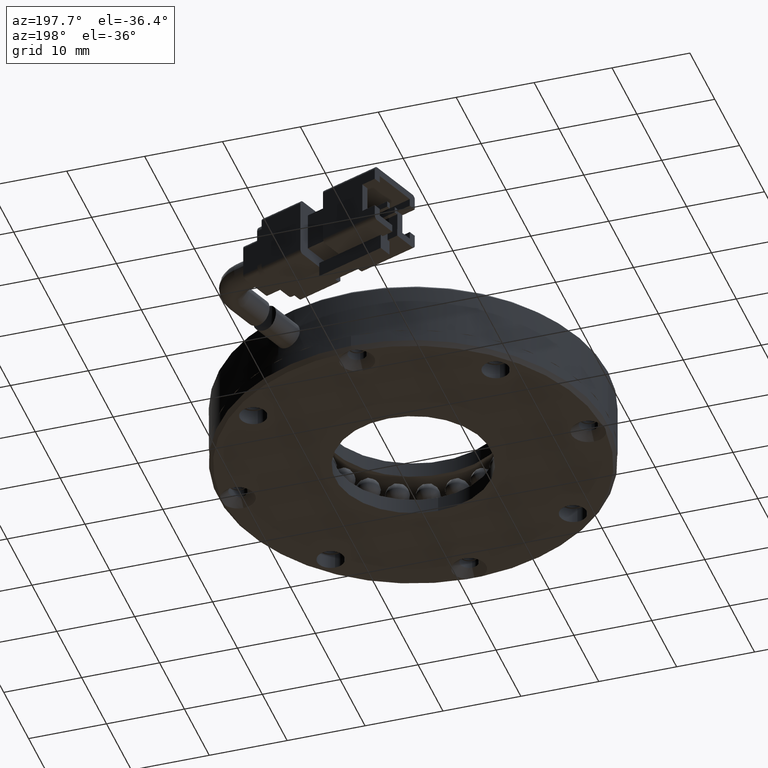
[diagram: clean part render]
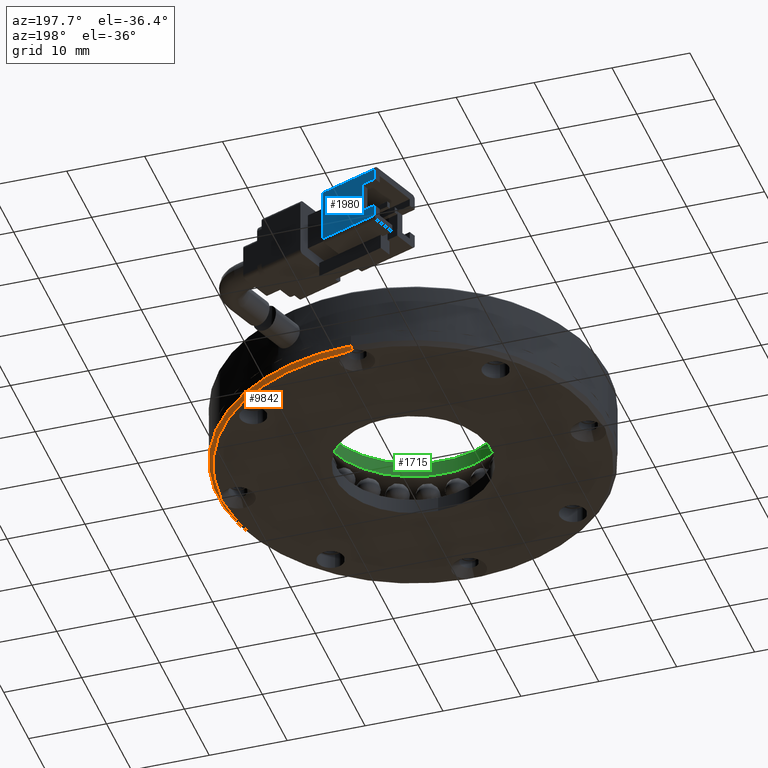
[diagram: same view with three faces highlighted in distinct colors, each labeled with its STEP entity id]
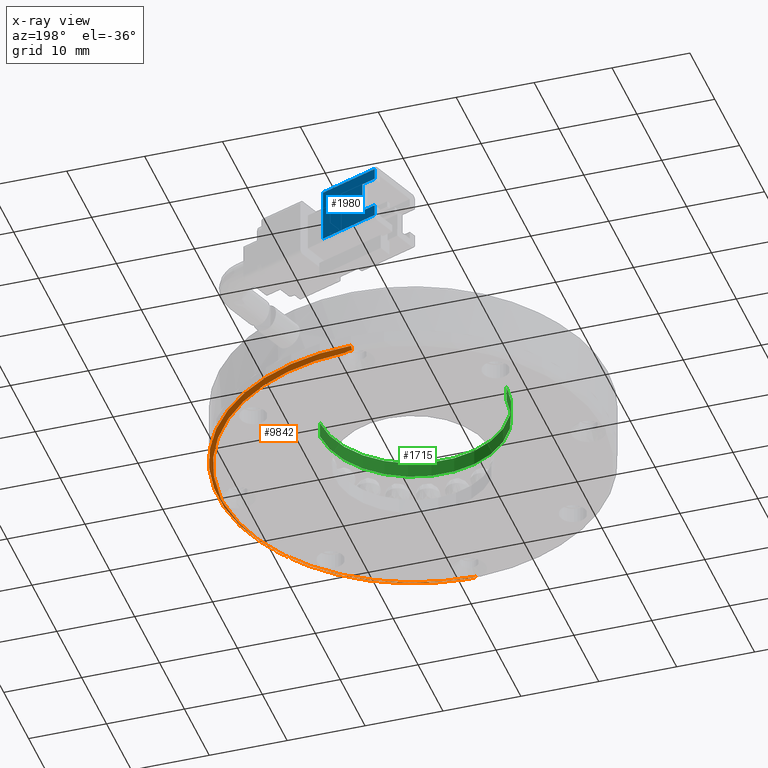
[diagram: x-ray of the same camera — body ghosted, the three highlighted faces saturated]
A machine part, auxiliary view with three faces highlighted in distinct colors.
The next image is the same camera in x-ray (body ghosted, the three faces saturated) — at least one of them is partly hidden behind the body in this view.
Their STEP definitions:

[orange] entity #9842 — the highlighted conical surface has half-angle 45 deg.
#259 = DIRECTION ( 'NONE',  ( 0.0000000000000000000, -1.000000000000000000, 0.0000000000000000000 ) ) ;
#511 = B_SPLINE_CURVE_WITH_KNOTS ( 'NONE', 3,
 ( #21918, #23974, #26030, #13807 ),
 .UNSPECIFIED., .F., .F.,
 ( 4, 4 ),
 ( 7.066236730883122700E-014, 0.0009687104830483191300 ),
 .UNSPECIFIED. ) ;
#888 = CARTESIAN_POINT ( 'NONE',  ( -96.45864291219014300, 7.103995396392966700, -5.442344225519678800 ) ) ;
#928 = CARTESIAN_POINT ( 'NONE',  ( -120.0521945451498200, -18.02060830784896300, -5.500000000056997100 ) ) ;
#1292 = ORIENTED_EDGE ( 'NONE', *, *, #15003, .F. ) ;
#1472 = VERTEX_POINT ( 'NONE', #928 ) ;
#2530 = AXIS2_PLACEMENT_3D ( 'NONE', #4258, #14392, #259 ) ;
#2641 = CARTESIAN_POINT ( 'NONE',  ( -96.52706109790560200, 5.504525139319234500, -5.500000000003801400 ) ) ;
#2915 = CIRCLE ( 'NONE', #7674, 24.49999999999999300 ) ;
#2937 = CARTESIAN_POINT ( 'NONE',  ( -96.52706109790560200, 7.416924911610252900, -5.500000000003801400 ) ) ;
#3398 = CARTESIAN_POINT ( 'NONE',  ( -121.0083944312394000, 6.460725025464729900, -4.999999999999938700 ) ) ;
#4258 = CARTESIAN_POINT ( 'NONE',  ( -121.0083944312394000, 6.460725025464729900, -4.999999999999936900 ) ) ;
#5030 = CARTESIAN_POINT ( 'NONE',  ( -121.0083944312394000, 6.460725025464729900, -5.499999999999940500 ) ) ;
#5443 = DIRECTION ( 'NONE',  ( 0.0000000000000000000, -1.000000000000000000, 6.938893903907228400E-017 ) ) ;
#5617 = VECTOR ( 'NONE', #22117, 1000.000000000000000 ) ;
#5744 = CARTESIAN_POINT ( 'NONE',  ( -121.0083944312391500, -18.13927497449481800, -5.400000000040388500 ) ) ;
#5816 = B_SPLINE_CURVE_WITH_KNOTS ( 'NONE', 3,
 ( #11002, #10819, #6930, #25297, #13069, #888, #15109, #2937 ),
 .UNSPECIFIED., .F., .F.,
 ( 4, 2, 2, 4 ),
 ( 1.892479617586475400E-014, 0.0009664087602209912800, 0.001449613140322023300, 0.001932817520423055200 ),
 .UNSPECIFIED. ) ;
#5868 = EDGE_CURVE ( 'NONE', #24442, #15573, #11523, .T. ) ;
#6144 = CARTESIAN_POINT ( 'NONE',  ( -96.52706109790560200, 7.416924911610252900, -5.500000000003801400 ) ) ;
#6930 = CARTESIAN_POINT ( 'NONE',  ( -96.40858181085407400, 6.132935350123366500, -5.400157904169087300 ) ) ;
#7075 = DIRECTION ( 'NONE',  ( -1.699320956058913600E-015, -1.000000000000000000, 0.0000000000000000000 ) ) ;
#7674 = AXIS2_PLACEMENT_3D ( 'NONE', #11544, #25834, #13607 ) ;
#8010 = VERTEX_POINT ( 'NONE', #5744 ) ;
#8096 = CARTESIAN_POINT ( 'NONE',  ( -121.0083944312394000, 31.46072502546472900, -4.999999999999938700 ) ) ;
#8391 = VERTEX_POINT ( 'NONE', #23396 ) ;
#8765 = CARTESIAN_POINT ( 'NONE',  ( -120.3628832549864600, -18.09806851928938800, -5.434724540944090500 ) ) ;
#9027 = ORIENTED_EDGE ( 'NONE', *, *, #5868, .T. ) ;
#9842 = ADVANCED_FACE ( 'NONE', ( #16717 ), #19590, .T. ) ;
#9869 = AXIS2_PLACEMENT_3D ( 'NONE', #3398, #17629, #5443 ) ;
#9992 = AXIS2_PLACEMENT_3D ( 'NONE', #5030, #19287, #7075 ) ;
#10341 = EDGE_CURVE ( 'NONE', #21057, #12636, #5816, .T. ) ;
#10819 = CARTESIAN_POINT ( 'NONE',  ( -96.44959856193874300, 5.815223172654206100, -5.434722582049408500 ) ) ;
#11002 = CARTESIAN_POINT ( 'NONE',  ( -96.52706109790560200, 5.504525139319234500, -5.500000000003801400 ) ) ;
#11513 = CARTESIAN_POINT ( 'NONE',  ( -121.0083944312394000, -18.53927497453527500, -4.999999999999936900 ) ) ;
#11523 = CIRCLE ( 'NONE', #9869, 25.00000000000000000 ) ;
#11544 = CARTESIAN_POINT ( 'NONE',  ( -121.0083944312394000, 6.460725025464729900, -5.499999999999940500 ) ) ;
#11659 = LINE ( 'NONE', #20069, #5617 ) ;
#11812 = VERTEX_POINT ( 'NONE', #19523 ) ;
#11987 = EDGE_LOOP ( 'NONE', ( #17489, #19363, #9027, #16852, #24385, #14552, #12289, #1292 ) ) ;
#12289 = ORIENTED_EDGE ( 'NONE', *, *, #10341, .T. ) ;
#12434 = EDGE_CURVE ( 'NONE', #8010, #15573, #22946, .T. ) ;
#12636 = VERTEX_POINT ( 'NONE', #6144 ) ;
#13069 = CARTESIAN_POINT ( 'NONE',  ( -96.41862857956496700, 6.784475436129787000, -5.408624282296243800 ) ) ;
#13607 = DIRECTION ( 'NONE',  ( 0.0000000000000000000, -1.000000000000000000, 0.0000000000000000000 ) ) ;
#13807 = CARTESIAN_POINT ( 'NONE',  ( -121.0083944312394800, 31.06072502543223400, -5.400000000032429500 ) ) ;
#14392 = DIRECTION ( 'NONE',  ( 1.278084676573917400E-047, 0.0000000000000000000, 1.000000000000000000 ) ) ;
#14552 = ORIENTED_EDGE ( 'NONE', *, *, #18432, .F. ) ;
#15003 = EDGE_CURVE ( 'NONE', #11812, #12636, #2915, .T. ) ;
#15109 = CARTESIAN_POINT ( 'NONE',  ( -96.48831416242894900, 7.261513053471551500, -5.467348088080473000 ) ) ;
#15573 = VERTEX_POINT ( 'NONE', #11513 ) ;
#16717 = FACE_OUTER_BOUND ( 'NONE', #11987, .T. ) ;
#16845 = VECTOR ( 'NONE', #24393, 1000.000000000000000 ) ;
#16852 = ORIENTED_EDGE ( 'NONE', *, *, #12434, .F. ) ;
#17489 = ORIENTED_EDGE ( 'NONE', *, *, #23184, .T. ) ;
#17629 = DIRECTION ( 'NONE',  ( -1.278084676573917400E-047, -0.0000000000000000000, -1.000000000000000000 ) ) ;
#18385 = EDGE_CURVE ( 'NONE', #8010, #1472, #20823, .T. ) ;
#18432 = EDGE_CURVE ( 'NONE', #21057, #1472, #22384, .T. ) ;
#18849 = CARTESIAN_POINT ( 'NONE',  ( -120.6812661764354300, -18.13927497451219000, -5.400000000040372500 ) ) ;
#18933 = CARTESIAN_POINT ( 'NONE',  ( -121.0083944312391500, -18.13927497449481800, -5.400000000040388500 ) ) ;
#19287 = DIRECTION ( 'NONE',  ( -1.278084676573917400E-047, -0.0000000000000000000, -1.000000000000000000 ) ) ;
#19363 = ORIENTED_EDGE ( 'NONE', *, *, #24395, .T. ) ;
#19523 = CARTESIAN_POINT ( 'NONE',  ( -120.0521945452011900, 30.94205835878457100, -5.500000000021927300 ) ) ;
#19590 = CONICAL_SURFACE ( 'NONE', #2530, 25.00000000000000000, 0.7853981633974526100 ) ;
#20069 = CARTESIAN_POINT ( 'NONE',  ( -121.0083944312394000, 31.46072502546472900, -4.999999999999936900 ) ) ;
#20823 = B_SPLINE_CURVE_WITH_KNOTS ( 'NONE', 3,
 ( #18933, #18849, #8765, #23058 ),
 .UNSPECIFIED., .F., .F.,
 ( 4, 4 ),
 ( -1.943215553745769600E-015, 0.0009687104830329427600 ),
 .UNSPECIFIED. ) ;
#21057 = VERTEX_POINT ( 'NONE', #2641 ) ;
#21918 = CARTESIAN_POINT ( 'NONE',  ( -120.0521945452011900, 30.94205835878457100, -5.500000000021927300 ) ) ;
#22117 = DIRECTION ( 'NONE',  ( 8.659560562354969800E-017, 0.7071067811865505700, 0.7071067811865444600 ) ) ;
#22345 = CARTESIAN_POINT ( 'NONE',  ( -121.0083944312394000, -18.53927497453527500, -4.999999999999936900 ) ) ;
#22384 = CIRCLE ( 'NONE', #9992, 24.49999999999999300 ) ;
#22946 = LINE ( 'NONE', #22345, #16845 ) ;
#23058 = CARTESIAN_POINT ( 'NONE',  ( -120.0521945451498200, -18.02060830784896300, -5.500000000056997100 ) ) ;
#23184 = EDGE_CURVE ( 'NONE', #11812, #8391, #511, .T. ) ;
#23396 = CARTESIAN_POINT ( 'NONE',  ( -121.0083944312394800, 31.06072502543223400, -5.400000000032429500 ) ) ;
#23974 = CARTESIAN_POINT ( 'NONE',  ( -120.3628832549735700, 31.01951857022330500, -5.434724540939064300 ) ) ;
#24385 = ORIENTED_EDGE ( 'NONE', *, *, #18385, .T. ) ;
#24393 = DIRECTION ( 'NONE',  ( 1.807484683472064700E-047, -0.7071067811865505700, 0.7071067811865444600 ) ) ;
#24395 = EDGE_CURVE ( 'NONE', #8391, #24442, #11659, .T. ) ;
#24442 = VERTEX_POINT ( 'NONE', #8096 ) ;
#25297 = CARTESIAN_POINT ( 'NONE',  ( -96.40830169627518800, 6.621290475694253900, -5.399921852557671500 ) ) ;
#25834 = DIRECTION ( 'NONE',  ( -1.278084676573917400E-047, -0.0000000000000000000, -1.000000000000000000 ) ) ;
#26030 = CARTESIAN_POINT ( 'NONE',  ( -120.6812661764556500, 31.06072502543223700, -5.400000000032431300 ) ) ;

[blue] entity #1980 — the highlighted planar face has unit normal (-0.342, -0.9397, 0).
#242 = VECTOR ( 'NONE', #1439, 1000.000000000000000 ) ;
#1272 = EDGE_LOOP ( 'NONE', ( #9837, #7074, #4959, #8082, #5878, #23474, #3468, #10697 ) ) ;
#1320 = CARTESIAN_POINT ( 'NONE',  ( -131.5561219847171800, 54.96189835004862800, -3.999999999999916100 ) ) ;
#1439 = DIRECTION ( 'NONE',  ( 2.333578247978733300E-016, -2.116735384756109300E-018, 1.000000000000000000 ) ) ;
#1542 = EDGE_CURVE ( 'NONE', #7194, #13660, #14290, .T. ) ;
#1884 = DIRECTION ( 'NONE',  ( 0.9396926207859083200, -0.3420201433256692700, -1.110223024625156500E-016 ) ) ;
#1980 = ADVANCED_FACE ( 'NONE', ( #15518 ), #4273, .F. ) ;
#2105 = CARTESIAN_POINT ( 'NONE',  ( -124.0385810184299100, 52.22573720344327300, -3.999999999999917800 ) ) ;
#2666 = VECTOR ( 'NONE', #13216, 999.9999999999998900 ) ;
#3245 = CARTESIAN_POINT ( 'NONE',  ( -124.0385810184299100, 52.22573720344325900, -3.999999999999934300 ) ) ;
#3468 = ORIENTED_EDGE ( 'NONE', *, *, #1542, .F. ) ;
#3551 = VERTEX_POINT ( 'NONE', #11746 ) ;
#3681 = AXIS2_PLACEMENT_3D ( 'NONE', #6928, #10277, #10460 ) ;
#4273 = PLANE ( 'NONE',  #3681 ) ;
#4959 = ORIENTED_EDGE ( 'NONE', *, *, #16801, .F. ) ;
#5172 = VERTEX_POINT ( 'NONE', #7171 ) ;
#5284 = DIRECTION ( 'NONE',  ( 2.333578247978733300E-016, -2.116735384756109300E-018, 1.000000000000000000 ) ) ;
#5878 = ORIENTED_EDGE ( 'NONE', *, *, #13919, .F. ) ;
#6304 = EDGE_CURVE ( 'NONE', #3551, #14292, #21076, .T. ) ;
#6808 = DIRECTION ( 'NONE',  ( 0.9396926207859083200, -0.3420201433256692700, -1.110223024625156500E-016 ) ) ;
#6928 = CARTESIAN_POINT ( 'NONE',  ( -131.5561219847171800, 54.96189835004862800, -3.999999999999916100 ) ) ;
#7074 = ORIENTED_EDGE ( 'NONE', *, *, #12948, .F. ) ;
#7171 = CARTESIAN_POINT ( 'NONE',  ( -129.7531995496019600, 54.30568824897596200, 1.500000000000083000 ) ) ;
#7194 = VERTEX_POINT ( 'NONE', #1320 ) ;
#7606 = CARTESIAN_POINT ( 'NONE',  ( -131.5561219847171800, 54.96189835004862100, 1.500000000000082600 ) ) ;
#8082 = ORIENTED_EDGE ( 'NONE', *, *, #12945, .T. ) ;
#8302 = CARTESIAN_POINT ( 'NONE',  ( -131.5561219847171800, 54.96189835004862800, -3.999999999999916100 ) ) ;
#8733 = CARTESIAN_POINT ( 'NONE',  ( -131.5561219847171800, 54.96189835004862800, -2.499999999999922300 ) ) ;
#9032 = VECTOR ( 'NONE', #1884, 999.9999999999998900 ) ;
#9497 = CARTESIAN_POINT ( 'NONE',  ( -129.7531995496019900, 54.30568824897596200, -3.999999999999917000 ) ) ;
#9592 = DIRECTION ( 'NONE',  ( -1.566359828355322200E-016, -1.057463294585659500E-016, -1.000000000000000000 ) ) ;
#9837 = ORIENTED_EDGE ( 'NONE', *, *, #6304, .F. ) ;
#9981 = VERTEX_POINT ( 'NONE', #19489 ) ;
#10022 = CARTESIAN_POINT ( 'NONE',  ( -131.5561219847171800, 54.96189835004862800, 1.500000000000083500 ) ) ;
#10277 = DIRECTION ( 'NONE',  ( -0.3420201433256692700, -0.9396926207859083200, 1.529417067667757400E-016 ) ) ;
#10389 = VECTOR ( 'NONE', #9592, 1000.000000000000000 ) ;
#10460 = DIRECTION ( 'NONE',  ( -1.566359828355322200E-016, -1.057463294585659500E-016, -1.000000000000000000 ) ) ;
#10697 = ORIENTED_EDGE ( 'NONE', *, *, #25376, .F. ) ;
#11746 = CARTESIAN_POINT ( 'NONE',  ( -129.7531995496019900, 54.30568824897596200, -2.499999999999921400 ) ) ;
#12285 = CARTESIAN_POINT ( 'NONE',  ( -131.5561219847171800, 54.96189835004862800, -2.499999999999922300 ) ) ;
#12403 = DIRECTION ( 'NONE',  ( -1.566359828355322200E-016, -1.057463294585659500E-016, -1.000000000000000000 ) ) ;
#12781 = CARTESIAN_POINT ( 'NONE',  ( -131.5561219847171800, 54.96189835004862800, -3.999999999999916100 ) ) ;
#12945 = EDGE_CURVE ( 'NONE', #15589, #9981, #16448, .T. ) ;
#12948 = EDGE_CURVE ( 'NONE', #5172, #3551, #15825, .T. ) ;
#13216 = DIRECTION ( 'NONE',  ( -0.9396926207859083200, 0.3420201433256692700, 2.200085921048892400E-016 ) ) ;
#13491 = LINE ( 'NONE', #19284, #2666 ) ;
#13660 = VERTEX_POINT ( 'NONE', #2105 ) ;
#13919 = EDGE_CURVE ( 'NONE', #17230, #9981, #13491, .T. ) ;
#14290 = LINE ( 'NONE', #12781, #24500 ) ;
#14292 = VERTEX_POINT ( 'NONE', #8733 ) ;
#14549 = LINE ( 'NONE', #3245, #24770 ) ;
#15518 = FACE_OUTER_BOUND ( 'NONE', #1272, .T. ) ;
#15589 = VERTEX_POINT ( 'NONE', #7606 ) ;
#15621 = VECTOR ( 'NONE', #22473, 999.9999999999998900 ) ;
#15825 = LINE ( 'NONE', #9497, #10389 ) ;
#16448 = LINE ( 'NONE', #25832, #242 ) ;
#16801 = EDGE_CURVE ( 'NONE', #15589, #5172, #24648, .T. ) ;
#17230 = VERTEX_POINT ( 'NONE', #19646 ) ;
#19284 = CARTESIAN_POINT ( 'NONE',  ( -131.5561219847171800, 54.96189835004864900, 3.000000000000065300 ) ) ;
#19489 = CARTESIAN_POINT ( 'NONE',  ( -131.5561219847171800, 54.96189835004863500, 3.000000000000074600 ) ) ;
#19646 = CARTESIAN_POINT ( 'NONE',  ( -124.0385810184299200, 52.22573720344327300, 3.000000000000072800 ) ) ;
#20492 = LINE ( 'NONE', #8302, #25912 ) ;
#21076 = LINE ( 'NONE', #12285, #15621 ) ;
#22473 = DIRECTION ( 'NONE',  ( -0.9396926207859083200, 0.3420201433256692700, 1.110223024625156500E-016 ) ) ;
#23474 = ORIENTED_EDGE ( 'NONE', *, *, #24234, .F. ) ;
#24234 = EDGE_CURVE ( 'NONE', #13660, #17230, #14549, .T. ) ;
#24500 = VECTOR ( 'NONE', #6808, 999.9999999999998900 ) ;
#24648 = LINE ( 'NONE', #10022, #9032 ) ;
#24770 = VECTOR ( 'NONE', #5284, 1000.000000000000000 ) ;
#25376 = EDGE_CURVE ( 'NONE', #14292, #7194, #20492, .T. ) ;
#25832 = CARTESIAN_POINT ( 'NONE',  ( -131.5561219847171800, 54.96189835004862800, -3.999999999999916100 ) ) ;
#25912 = VECTOR ( 'NONE', #12403, 1000.000000000000000 ) ;

[green] entity #1715 — the highlighted cylindrical surface (partial cylindrical patch) has radius 12 mm, axis along (-0, -0, -1).
#647 = EDGE_CURVE ( 'NONE', #18058, #5508, #7228, .T. ) ;
#985 = VECTOR ( 'NONE', #10332, 1000.000000000000000 ) ;
#1036 = DIRECTION ( 'NONE',  ( 0.0000000000000000000, 0.0000000000000000000, 1.000000000000000000 ) ) ;
#1152 = CARTESIAN_POINT ( 'NONE',  ( -121.0083944312392800, 6.460725025466879300, 1.500000000000061300 ) ) ;
#1171 = EDGE_CURVE ( 'NONE', #2955, #3360, #1630, .T. ) ;
#1630 = LINE ( 'NONE', #22497, #985 ) ;
#1715 = ADVANCED_FACE ( 'NONE', ( #3131 ), #11389, .F. ) ;
#1768 = CARTESIAN_POINT ( 'NONE',  ( -121.0083944312392800, 6.460725025466879300, -56.72319322623545200 ) ) ;
#2955 = VERTEX_POINT ( 'NONE', #14260 ) ;
#3131 = FACE_OUTER_BOUND ( 'NONE', #13725, .T. ) ;
#3179 = DIRECTION ( 'NONE',  ( -1.000000000000000000, 0.0000000000000000000, 0.0000000000000000000 ) ) ;
#3360 = VERTEX_POINT ( 'NONE', #7142 ) ;
#5508 = VERTEX_POINT ( 'NONE', #6256 ) ;
#6256 = CARTESIAN_POINT ( 'NONE',  ( -133.0083944312393100, 6.460725025466879300, 1.500000000000061300 ) ) ;
#7142 = CARTESIAN_POINT ( 'NONE',  ( -109.0083944312392800, 6.460725025466881100, 1.500000000000061300 ) ) ;
#7228 = LINE ( 'NONE', #21539, #22878 ) ;
#8795 = AXIS2_PLACEMENT_3D ( 'NONE', #1768, #12711, #12892 ) ;
#9709 = DIRECTION ( 'NONE',  ( -0.0000000000000000000, -0.0000000000000000000, -1.000000000000000000 ) ) ;
#10332 = DIRECTION ( 'NONE',  ( -0.0000000000000000000, -0.0000000000000000000, -1.000000000000000000 ) ) ;
#11389 = CYLINDRICAL_SURFACE ( 'NONE', #8795, 12.00000000000001100 ) ;
#11768 = ORIENTED_EDGE ( 'NONE', *, *, #23557, .F. ) ;
#12711 = DIRECTION ( 'NONE',  ( -0.0000000000000000000, -0.0000000000000000000, -1.000000000000000000 ) ) ;
#12892 = DIRECTION ( 'NONE',  ( -1.000000000000000000, 0.0000000000000000000, 0.0000000000000000000 ) ) ;
#13208 = CARTESIAN_POINT ( 'NONE',  ( -121.0083944312392800, 6.460725025466879300, 3.500000000000063100 ) ) ;
#13719 = ORIENTED_EDGE ( 'NONE', *, *, #647, .F. ) ;
#13725 = EDGE_LOOP ( 'NONE', ( #26049, #15899, #11768, #13719 ) ) ;
#13731 = AXIS2_PLACEMENT_3D ( 'NONE', #1152, #15372, #3179 ) ;
#14006 = CIRCLE ( 'NONE', #13731, 12.00000000000001100 ) ;
#14260 = CARTESIAN_POINT ( 'NONE',  ( -109.0083944312392800, 6.460725025466881100, 3.500000000000063100 ) ) ;
#15252 = DIRECTION ( 'NONE',  ( -1.000000000000000000, 0.0000000000000000000, 0.0000000000000000000 ) ) ;
#15372 = DIRECTION ( 'NONE',  ( 0.0000000000000000000, 0.0000000000000000000, 1.000000000000000000 ) ) ;
#15899 = ORIENTED_EDGE ( 'NONE', *, *, #1171, .T. ) ;
#18058 = VERTEX_POINT ( 'NONE', #21891 ) ;
#21117 = CIRCLE ( 'NONE', #21283, 12.00000000000001100 ) ;
#21283 = AXIS2_PLACEMENT_3D ( 'NONE', #13208, #1036, #15252 ) ;
#21539 = CARTESIAN_POINT ( 'NONE',  ( -133.0083944312393100, 6.460725025466879300, -56.72319322623545200 ) ) ;
#21891 = CARTESIAN_POINT ( 'NONE',  ( -133.0083944312393100, 6.460725025466879300, 3.500000000000063100 ) ) ;
#22497 = CARTESIAN_POINT ( 'NONE',  ( -109.0083944312392800, 6.460725025466881100, -56.72319322623545200 ) ) ;
#22878 = VECTOR ( 'NONE', #9709, 1000.000000000000000 ) ;
#23557 = EDGE_CURVE ( 'NONE', #5508, #3360, #14006, .T. ) ;
#25595 = EDGE_CURVE ( 'NONE', #18058, #2955, #21117, .T. ) ;
#26049 = ORIENTED_EDGE ( 'NONE', *, *, #25595, .T. ) ;